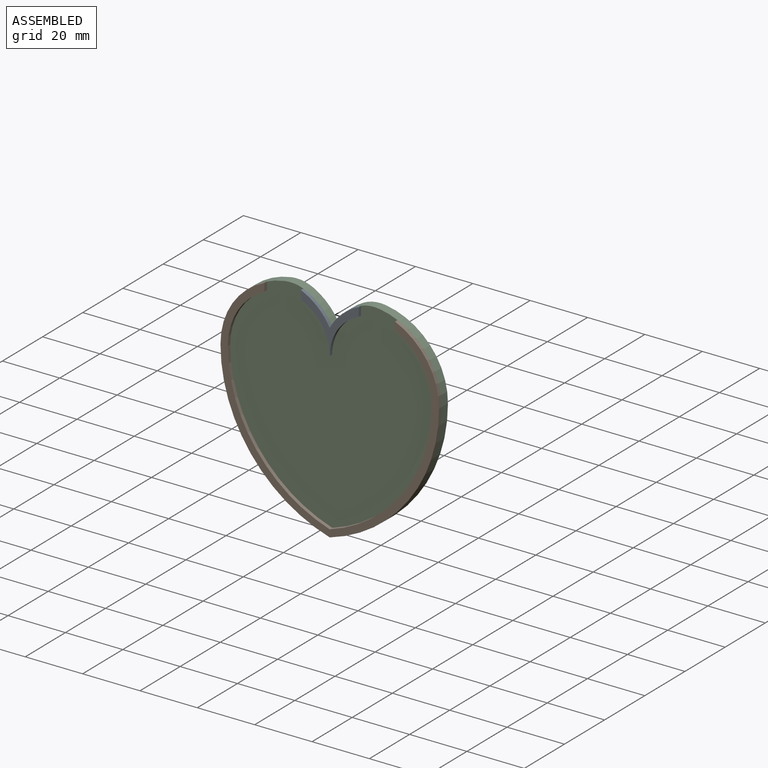
[diagram: assembled view]
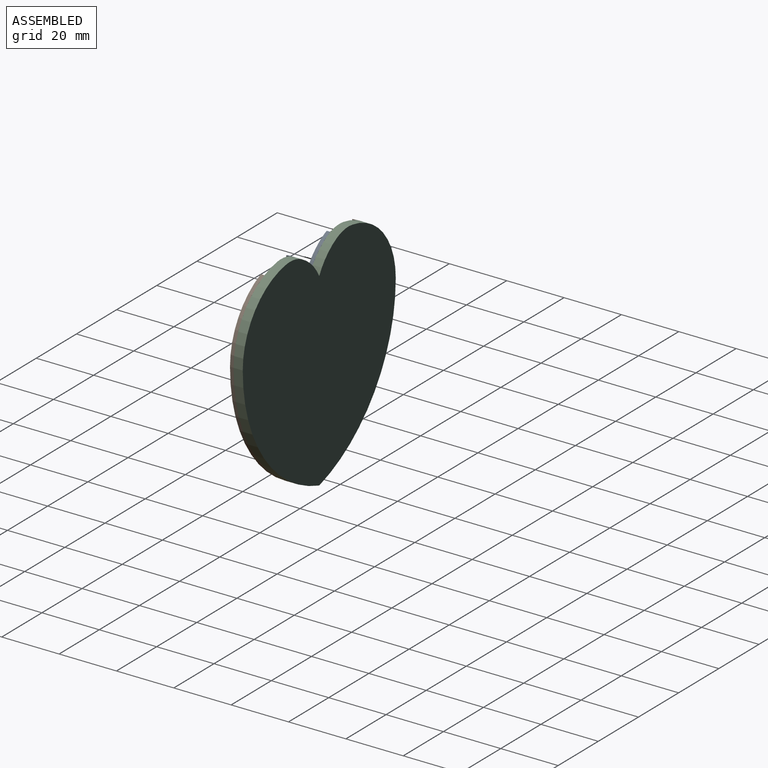
[diagram: assembled view, second angle]
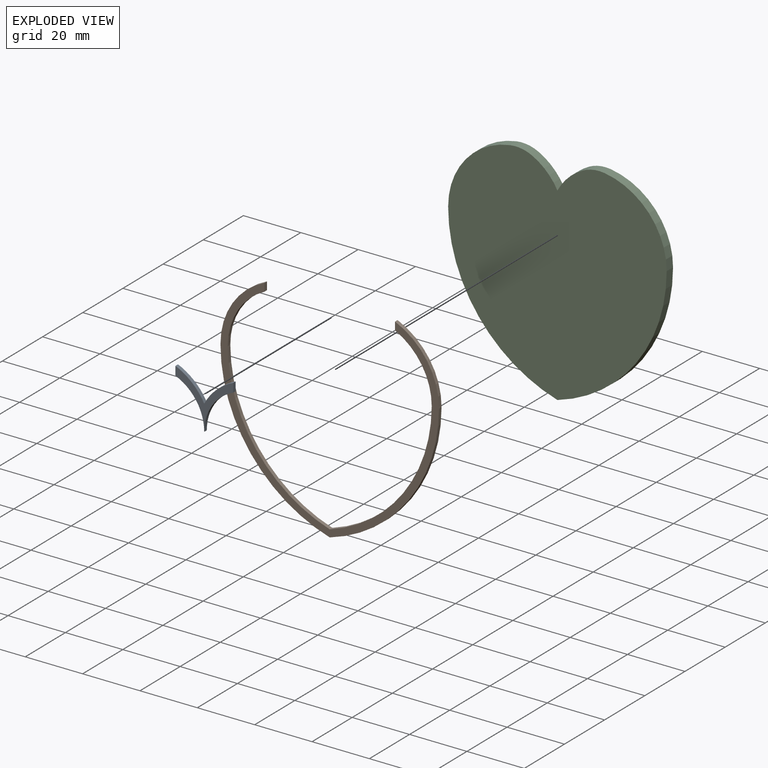
[diagram: exploded view]
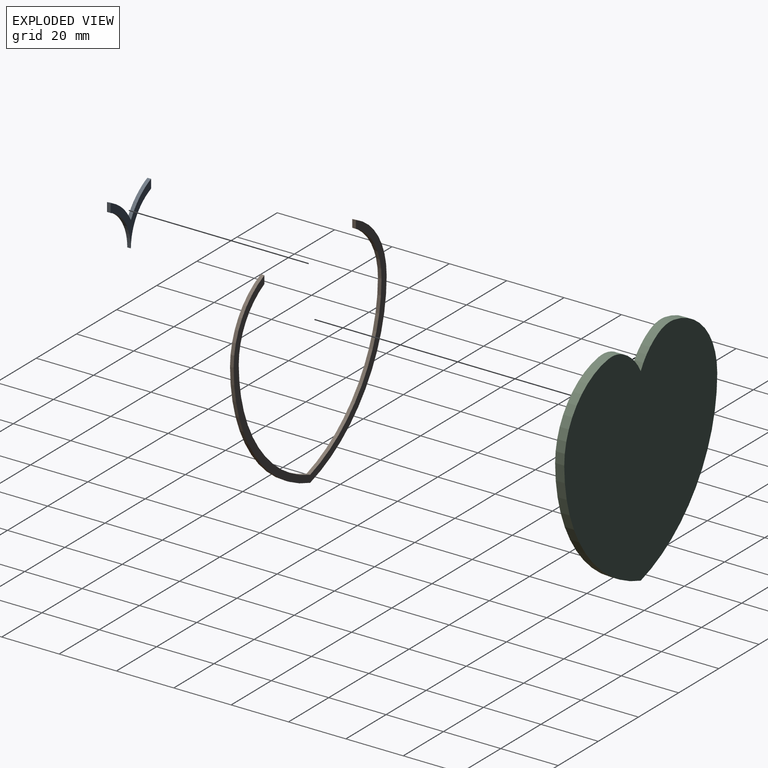
[diagram: exploded view, second angle]
ASSEMBLY  parts=3 mates=4
PART A: 10 faces, bbox 20.1x1.3x18.1 mm
  f0: plane 20.14x18.09mm, normal (0,-1,0), area 74.6mm2, adj f2,f3,f4,f5,f6,f7,f8,f9
  f1: plane 20.14x18.09mm, normal (0,1,0), area 74.6mm2, adj f2,f3,f4,f5,f6,f7,f8,f9
  f2: cylinder r=12.7mm len=1.33mm, axis (0,-1,0), area 1.9mm2, adj f0,f1,f5,f9
  f3: cylinder r=16.24mm len=15.02mm, axis (0,-1,0), area 24.4mm2, adj f0,f1,f7,f9
  f4: cylinder r=20.64mm len=8.74mm, axis (0,-1,0), area 15.8mm2, adj f0,f1,f5,f6
  f5: cylinder r=20.64mm len=8.74mm, axis (0,-1,0), area 15.8mm2, adj f0,f1,f2,f4
  f6: cylinder r=12.7mm len=1.33mm, axis (0,-1,0), area 1.9mm2, adj f0,f1,f4,f8
  f7: cylinder r=16.24mm len=15.02mm, axis (0,-1,0), area 24.4mm2, adj f0,f1,f3,f8
  f8: plane 3.07x1.27mm, normal (-1,0,0), area 3.9mm2, adj f0,f1,f6,f7
  f9: plane 3.07x1.27mm, normal (1,0,0), area 3.9mm2, adj f0,f1,f2,f3
PART B: 12 faces, bbox 76.2x1.3x74.1 mm
  f0: cylinder r=50.8mm len=48.26mm, axis (0,-1,0), area 81.4mm2, adj f1,f6,f9,f10
  f1: cylinder r=22.86mm len=20.55mm, axis (0,-1,0), area 32.4mm2, adj f0,f2,f9,f10
  f2: plane 2.77x1.27mm, normal (1,0,0), area 3.5mm2, adj f1,f3,f9,f10
  f3: cylinder r=25.4mm len=23.32mm, axis (0,-1,0), area 37.5mm2, adj f2,f4,f9,f10
  f4: cylinder r=52.92mm len=50.8mm, axis (0,-1,0), area 86.5mm2, adj f3,f5,f9,f10
  f5: cylinder r=52.92mm len=50.8mm, axis (0,-1,0), area 86.5mm2, adj f4,f7,f9,f10
  f6: cylinder r=50.8mm len=48.26mm, axis (0,-1,0), area 81.4mm2, adj f0,f8,f9,f10
  f7: cylinder r=25.4mm len=23.32mm, axis (0,-1,0), area 37.5mm2, adj f5,f9,f10,f11
  f8: cylinder r=22.86mm len=20.55mm, axis (0,-1,0), area 32.4mm2, adj f6,f9,f10,f11
  f9: plane 76.2x74.12mm, normal (0,1,0), area 475.5mm2, adj f0,f1,f2,f3,f4,f5,f6,f7
  f10: plane 76.2x74.12mm, normal (0,-1,0), area 475.5mm2, adj f0,f1,f2,f3,f4,f5,f6,f7
  f11: plane 2.77x1.27mm, normal (-1,0,0), area 3.5mm2, adj f7,f8,f9,f10
PART C: 10 faces, bbox 76.2x3.2x76.1 mm
  f0: plane 76.2x76.06mm, normal (0,-1,0), area 4415.8mm2, adj f2,f3,f4,f5,f6,f7,f8,f9
  f1: plane 76.2x76.06mm, normal (0,1,0), area 4415.8mm2, adj f2,f3,f4,f5,f6,f7,f8,f9
  f2: cylinder r=25.4mm len=25.13mm, axis (0,-1,0), area 114.8mm2, adj f0,f1,f4,f9
  f3: cylinder r=25.4mm len=25.13mm, axis (0,-1,0), area 114.8mm2, adj f0,f1,f7,f8
  f4: cylinder r=52.92mm len=50.8mm, axis (0,-1,0), area 216.2mm2, adj f0,f1,f2,f7
  f5: cylinder r=20.64mm len=8.74mm, axis (0,-1,0), area 39.5mm2, adj f0,f1,f6,f8
  f6: cylinder r=20.64mm len=8.74mm, axis (0,-1,0), area 39.5mm2, adj f0,f1,f5,f9
  f7: cylinder r=52.92mm len=50.8mm, axis (0,-1,0), area 216.2mm2, adj f0,f1,f3,f4
  f8: cylinder r=12.7mm len=7.68mm, axis (0,-1,0), area 25.1mm2, adj f0,f1,f3,f5
  f9: cylinder r=12.7mm len=7.68mm, axis (0,-1,0), area 25.1mm2, adj f0,f1,f2,f6
PLACE A t=(-51.13,14.4,-6.1)mm
PLACE B t=(-51.13,14.4,-6.1)mm
PLACE C t=(-51.13,17.57,-6.1)mm
MATE fastened A.f1 <-> C.f0  axis (0,1,0) through (-13.03,14.4,59.94)mm
MATE fastened B.f9 <-> C.f0  axis (0,1,0) through (-13.03,14.4,-6.1)mm
MATE parallel A.f1 <-> C.f0  axis (0,1,0) through (-13.03,14.4,59.94)mm
MATE parallel B.f9 <-> C.f0  axis (0,1,0) through (-13.03,14.4,-6.1)mm
